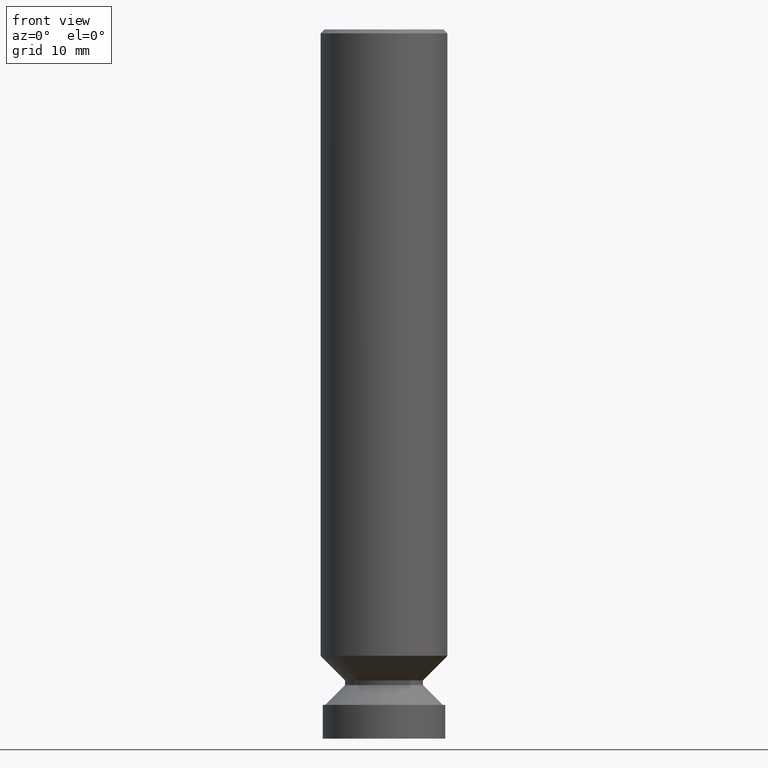
[diagram: clean part render]
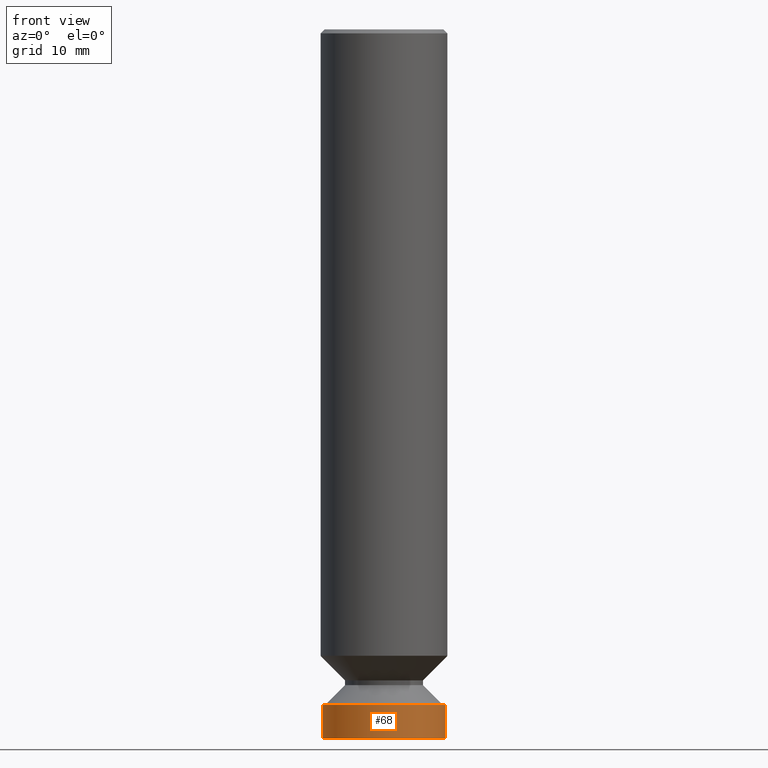
[diagram: same view with one face highlighted and labeled with its STEP entity id]
A machine part, front view. The second image highlights one B-rep face of the part: STEP entity #68.
In plain terms, the highlighted cylindrical surface (partial cylindrical patch) has radius 7.6835 mm, axis along (-0, 0, 1).
Its self-contained STEP definition (entity closure, byte-faithful):
#4 = CIRCLE ( 'NONE', #361, 0.3025000000000004352 ) ;
#21 = DIRECTION ( 'NONE',  ( 1.000000000000000000, -6.982962677686265922E-15, 4.876176775795935232E-29 ) ) ;
#34 = CARTESIAN_POINT ( 'NONE',  ( -0.3025000000000004352, -9.779254218483265549E-15, -3.499999999999980016 ) ) ;
#68 = ADVANCED_FACE ( 'NONE', ( #785 ), #335, .T. ) ;
#73 = CARTESIAN_POINT ( 'NONE',  ( -0.3025000000000002132, 2.149391775674304577E-15, -1.487977864802109852E-29 ) ) ;
#96 = VECTOR ( 'NONE', #647, 39.37007874015748143 ) ;
#176 = EDGE_CURVE ( 'NONE', #289, #722, #506, .T. ) ;
#251 = CARTESIAN_POINT ( 'NONE',  ( 8.559140821647929884E-29, -1.222018468595094150E-14, -3.499999999999980016 ) ) ;
#289 = VERTEX_POINT ( 'NONE', #818 ) ;
#291 = EDGE_CURVE ( 'NONE', #606, #722, #466, .T. ) ;
#292 = ORIENTED_EDGE ( 'NONE', *, *, #316, .T. ) ;
#316 = EDGE_CURVE ( 'NONE', #742, #289, #4, .T. ) ;
#323 = DIRECTION ( 'NONE',  ( -2.445468806185136877E-29, 3.491481338843145188E-15, 1.000000000000000000 ) ) ;
#335 = CYLINDRICAL_SURFACE ( 'NONE', #743, 0.3025000000000002132 ) ;
#361 = AXIS2_PLACEMENT_3D ( 'NONE', #251, #565, #499 ) ;
#376 = CARTESIAN_POINT ( 'NONE',  ( 8.150747531015059748E-29, -1.163710730236420348E-14, -3.332999999999999741 ) ) ;
#466 = CIRCLE ( 'NONE', #718, 0.3024999999999999911 ) ;
#499 = DIRECTION ( 'NONE',  ( 1.000000000000000000, -6.982962677686269866E-15, 0.000000000000000000 ) ) ;
#506 = LINE ( 'NONE', #710, #96 ) ;
#530 = ORIENTED_EDGE ( 'NONE', *, *, #669, .F. ) ;
#533 = EDGE_LOOP ( 'NONE', ( #530, #292, #615, #793 ) ) ;
#565 = DIRECTION ( 'NONE',  ( -2.445468806185136597E-29, 3.491481338843145583E-15, 1.000000000000000000 ) ) ;
#567 = DIRECTION ( 'NONE',  ( -2.445468806185136597E-29, 3.491481338843145583E-15, 1.000000000000000000 ) ) ;
#572 = CARTESIAN_POINT ( 'NONE',  ( -0.3024999999999999911, -9.779254218483268704E-15, -3.332999999999999741 ) ) ;
#577 = LINE ( 'NONE', #73, #724 ) ;
#579 = CARTESIAN_POINT ( 'NONE',  ( 0.000000000000000000, 0.000000000000000000, 0.000000000000000000 ) ) ;
#591 = DIRECTION ( 'NONE',  ( -2.445468806185136597E-29, 3.491481338843145583E-15, 1.000000000000000000 ) ) ;
#606 = VERTEX_POINT ( 'NONE', #572 ) ;
#615 = ORIENTED_EDGE ( 'NONE', *, *, #176, .T. ) ;
#647 = DIRECTION ( 'NONE',  ( -2.445468806185136877E-29, 3.491481338843145188E-15, 1.000000000000000000 ) ) ;
#669 = EDGE_CURVE ( 'NONE', #742, #606, #577, .T. ) ;
#680 = DIRECTION ( 'NONE',  ( 1.000000000000000000, -6.982962677686267499E-15, 0.000000000000000000 ) ) ;
#710 = CARTESIAN_POINT ( 'NONE',  ( 0.3025000000000002132, -2.112346210000097021E-15, 1.475043474678271390E-29 ) ) ;
#718 = AXIS2_PLACEMENT_3D ( 'NONE', #376, #567, #680 ) ;
#722 = VERTEX_POINT ( 'NONE', #727 ) ;
#724 = VECTOR ( 'NONE', #323, 39.37007874015748143 ) ;
#727 = CARTESIAN_POINT ( 'NONE',  ( 0.3024999999999999911, -1.374945351236429853E-14, -3.332999999999999741 ) ) ;
#742 = VERTEX_POINT ( 'NONE', #34 ) ;
#743 = AXIS2_PLACEMENT_3D ( 'NONE', #579, #591, #21 ) ;
#785 = FACE_OUTER_BOUND ( 'NONE', #533, .T. ) ;
#793 = ORIENTED_EDGE ( 'NONE', *, *, #291, .F. ) ;
#818 = CARTESIAN_POINT ( 'NONE',  ( 0.3025000000000004352, -1.433253089595104128E-14, -3.499999999999980016 ) ) ;